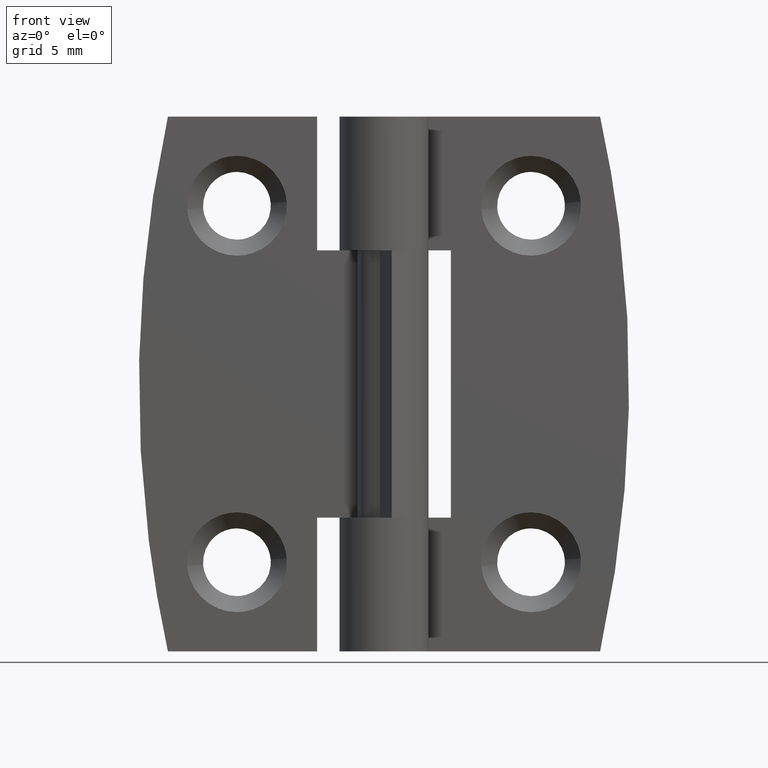
[diagram: clean part render]
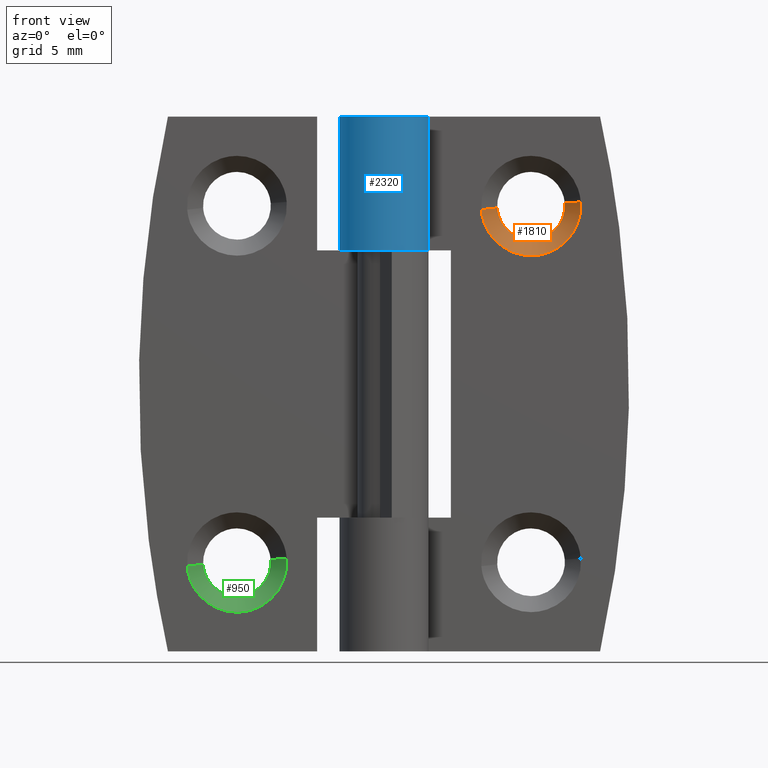
[diagram: same view with three faces highlighted in distinct colors, each labeled with its STEP entity id]
A machine part, front view with three faces highlighted in distinct colors.
Their STEP definitions:

[orange] entity #1810 — the highlighted face is a freeform B-spline surface patch.
#1501=CARTESIAN_POINT('',(10.137591467527031,2.400000000000000,24.783208736986101));
#1502=VERTEX_POINT('',#1501);
#1503=CARTESIAN_POINT('',(8.250000000000000,2.400000000000000,23.100000000000001));
#1504=VERTEX_POINT('',#1503);
#1505=CARTESIAN_POINT('',(10.137591467527027,2.400000000000000,24.783208736986090));
#1506=CARTESIAN_POINT('',(9.944273710852892,2.400000000000000,23.100000000000012));
#1507=CARTESIAN_POINT('',(8.250000000000000,2.400000000000000,23.100000000000001));
#1515=(BOUNDED_CURVE()B_SPLINE_CURVE(2,(#1505,#1506,#1507),.UNSPECIFIED.,.F.,.U.)B_SPLINE_CURVE_WITH_KNOTS((3,3),(0.269767755877904,0.500000000000000),.UNSPECIFIED.)CURVE()GEOMETRIC_REPRESENTATION_ITEM()RATIONAL_B_SPLINE_CURVE((0.957343736458110,0.730266147777739,1.0))REPRESENTATION_ITEM(''));
#1516=EDGE_CURVE('',#1502,#1504,#1515,.T.);
#1555=CARTESIAN_POINT('',(6.353543873147675,2.399999999999954,24.884007935942790));
#1556=VERTEX_POINT('',#1555);
#1562=CARTESIAN_POINT('',(8.250000000000000,2.400000000000000,23.100000000000001));
#1563=CARTESIAN_POINT('',(6.462658320803204,2.400000000000000,23.100000000000005));
#1564=CARTESIAN_POINT('',(6.353543873147670,2.400000000000000,24.884007935942790));
#1572=(BOUNDED_CURVE()B_SPLINE_CURVE(2,(#1562,#1563,#1564),.UNSPECIFIED.,.F.,.U.)B_SPLINE_CURVE_WITH_KNOTS((3,3),(0.500000000000000,0.739332976895730),.UNSPECIFIED.)CURVE()GEOMETRIC_REPRESENTATION_ITEM()RATIONAL_B_SPLINE_CURVE((1.0,0.719603976115215,0.976072073079005))REPRESENTATION_ITEM(''));
#1573=EDGE_CURVE('',#1504,#1556,#1572,.T.);
#1600=CARTESIAN_POINT('',(10.144142934095999,2.399999999992246,25.149072281942921));
#1601=VERTEX_POINT('',#1600);
#1602=CARTESIAN_POINT('',(10.144142934095996,2.399999999992245,25.149072281942921));
#1603=CARTESIAN_POINT('',(10.150000000000000,2.400000000000000,25.074651203374248));
#1604=CARTESIAN_POINT('',(10.150000000000000,2.400000000000000,25.0));
#1605=CARTESIAN_POINT('',(10.149999999999999,2.400000000000000,24.891249253444652));
#1606=CARTESIAN_POINT('',(10.137591467527027,2.400000000000000,24.783208736986104));
#1614=(BOUNDED_CURVE()B_SPLINE_CURVE(2,(#1602,#1603,#1604,#1605,#1606),.UNSPECIFIED.,.F.,.U.)B_SPLINE_CURVE_WITH_KNOTS((3,2,3),(0.236331300622015,0.250000000000000,0.269767755877904),.UNSPECIFIED.)CURVE()GEOMETRIC_REPRESENTATION_ITEM()RATIONAL_B_SPLINE_CURVE((0.969723356149377,0.983986122568754,1.0,0.976840633408809,0.957343736458110))REPRESENTATION_ITEM(''));
#1615=EDGE_CURVE('',#1601,#1502,#1614,.T.);
#1703=CARTESIAN_POINT('',(11.041368534455779,1.499999999992352,25.219685468097062));
#1704=VERTEX_POINT('',#1703);
#1705=CARTESIAN_POINT('',(10.144142934095999,2.399999999992246,25.149072281942921));
#1706=CARTESIAN_POINT('',(11.041368534455779,1.499999999992352,25.219685468097062));
#1707=QUASI_UNIFORM_CURVE('',1,(#1705,#1706),.UNSPECIFIED.,.F.,.U.);
#1708=EDGE_CURVE('',#1601,#1704,#1707,.T.);
#1725=CARTESIAN_POINT('',(5.458631465544222,1.499999999992353,24.780314531902938));
#1726=VERTEX_POINT('',#1725);
#1742=CARTESIAN_POINT('',(6.353543873147675,2.399999999999954,24.884007935942790));
#1743=CARTESIAN_POINT('',(5.458631465544222,1.499999999992353,24.780314531902938));
#1744=QUASI_UNIFORM_CURVE('',1,(#1742,#1743),.UNSPECIFIED.,.F.,.U.);
#1745=EDGE_CURVE('',#1556,#1726,#1744,.T.);
#1751=CARTESIAN_POINT('',(6.373681003226377,2.422500000000000,24.911226755304700));
#1752=CARTESIAN_POINT('',(6.375969338945305,2.422500000000001,24.882150693154973));
#1753=CARTESIAN_POINT('',(6.525594658145087,2.422500000000001,22.980980753687021));
#1754=CARTESIAN_POINT('',(8.397306952229030,2.422500000000000,23.128287705916058));
#1755=CARTESIAN_POINT('',(10.269019246312972,2.422500000000001,23.275594658145081));
#1756=CARTESIAN_POINT('',(10.120667328503878,2.422500000000000,25.160584498831589));
#1757=CARTESIAN_POINT('',(10.119628485875049,2.422500000000001,25.173784245962167));
#1758=CARTESIAN_POINT('',(5.428713290104263,1.476937500000000,24.866518019652389));
#1759=CARTESIAN_POINT('',(5.432154096898143,1.476937500000000,24.822798424071802));
#1760=CARTESIAN_POINT('',(5.657134990471213,1.476937499999999,21.964145128604830));
#1761=CARTESIAN_POINT('',(8.471494930933192,1.476937500000000,22.185640059538020));
#1762=CARTESIAN_POINT('',(11.285854871395170,1.476937499999999,22.407134990471210));
#1763=CARTESIAN_POINT('',(11.062788700439137,1.476937499999999,25.241459428352993));
#1764=CARTESIAN_POINT('',(11.061226667060266,1.476937500000001,25.261306944269808));
#1772=(BOUNDED_SURFACE()B_SPLINE_SURFACE(2,1,((#1751,#1758),(#1752,#1759),(#1753,#1760),(#1754,#1761),(#1755,#1762),(#1756,#1763),(#1757,#1764)),.UNSPECIFIED.,.F.,.F.,.U.)B_SPLINE_SURFACE_WITH_KNOTS((3,1,2,1,3),(2,2),(0.0,0.104789841354437,4.782192941062016,9.459596040769595,9.506658706696635),(0.0,1.0),.UNSPECIFIED.)GEOMETRIC_REPRESENTATION_ITEM()RATIONAL_B_SPLINE_SURFACE(((1.013123621496369,1.013123621496369),(1.006561810748184,1.006561810748184),(0.707106781186548,0.707106781186548),(1.0,1.0),(0.707106781186548,0.707106781186548),(1.002947006151806,1.002947006151806),(1.005894012303611,1.005894012303611)))REPRESENTATION_ITEM('')SURFACE());
#1773=ORIENTED_EDGE('',*,*,#1615,.T.);
#1774=ORIENTED_EDGE('',*,*,#1516,.T.);
#1775=ORIENTED_EDGE('',*,*,#1573,.T.);
#1776=ORIENTED_EDGE('',*,*,#1745,.T.);
#1777=CARTESIAN_POINT('',(8.250000000000000,1.500000000000000,22.199999999999999));
#1778=VERTEX_POINT('',#1777);
#1779=CARTESIAN_POINT('',(8.250000000000000,1.500000000000000,22.199999999999999));
#1780=CARTESIAN_POINT('',(5.661706623465825,1.500000000000000,22.200000000000010));
#1781=CARTESIAN_POINT('',(5.458631465544222,1.499999999992353,24.780314531902945));
#1789=(BOUNDED_CURVE()B_SPLINE_CURVE(2,(#1779,#1780,#1781),.UNSPECIFIED.,.F.,.U.)B_SPLINE_CURVE_WITH_KNOTS((3,3),(0.500000000000000,0.736331300625583),.UNSPECIFIED.)CURVE()GEOMETRIC_REPRESENTATION_ITEM()RATIONAL_B_SPLINE_CURVE((1.0,0.723120658613613,0.969723356156823))REPRESENTATION_ITEM(''));
#1790=EDGE_CURVE('',#1778,#1726,#1789,.T.);
#1791=ORIENTED_EDGE('',*,*,#1790,.F.);
#1792=CARTESIAN_POINT('',(11.041368534455779,1.499999999992352,25.219685468097062));
#1793=CARTESIAN_POINT('',(11.050000000000002,1.500000000000000,25.110012299680246));
#1794=CARTESIAN_POINT('',(11.050000000000001,1.500000000000000,25.0));
#1795=CARTESIAN_POINT('',(11.050000000000001,1.500000000000000,22.200000000000010));
#1796=CARTESIAN_POINT('',(8.250000000000000,1.500000000000000,22.199999999999999));
#1804=(BOUNDED_CURVE()B_SPLINE_CURVE(2,(#1792,#1793,#1794,#1795,#1796),.UNSPECIFIED.,.F.,.U.)B_SPLINE_CURVE_WITH_KNOTS((3,2,3),(0.236331300625583,0.250000000000000,0.500000000000000),.UNSPECIFIED.)CURVE()GEOMETRIC_REPRESENTATION_ITEM()RATIONAL_B_SPLINE_CURVE((0.969723356156822,0.983986122572934,1.0,0.707106781186547,1.0))REPRESENTATION_ITEM(''));
#1805=EDGE_CURVE('',#1704,#1778,#1804,.T.);
#1806=ORIENTED_EDGE('',*,*,#1805,.F.);
#1807=ORIENTED_EDGE('',*,*,#1708,.F.);
#1808=EDGE_LOOP('',(#1773,#1774,#1775,#1776,#1791,#1806,#1807));
#1809=FACE_OUTER_BOUND('',#1808,.T.);
#1810=ADVANCED_FACE('',(#1809),#1772,.F.);

[blue] entity #2320 — the highlighted face is a freeform B-spline surface patch.
#2146=CARTESIAN_POINT('',(2.036541185441630,1.450000000000000,22.500000000000000));
#2147=VERTEX_POINT('',#2146);
#2160=CARTESIAN_POINT('',(2.036541185441630,1.450000000000000,30.0));
#2161=VERTEX_POINT('',#2160);
#2167=CARTESIAN_POINT('',(2.036541185441630,1.450000000000000,30.0));
#2168=CARTESIAN_POINT('',(2.036541185441630,1.450000000000000,22.500000000000000));
#2169=QUASI_UNIFORM_CURVE('',1,(#2167,#2168),.UNSPECIFIED.,.F.,.U.);
#2170=EDGE_CURVE('',#2161,#2147,#2169,.T.);
#2248=CARTESIAN_POINT('',(0.021816338745933,2.499904807660427,30.187500000000000));
#2249=CARTESIAN_POINT('',(0.021816338745933,2.499904807660427,22.307812500000001));
#2250=CARTESIAN_POINT('',(-3.120994735379072,2.527331704395645,30.187500000000011));
#2251=CARTESIAN_POINT('',(-3.120994735379072,2.527331704395645,22.307812500000001));
#2252=CARTESIAN_POINT('',(-2.440740017799832,-0.541099034845259,30.187500000000000));
#2253=CARTESIAN_POINT('',(-2.440740017799832,-0.541099034845259,22.307812500000001));
#2254=CARTESIAN_POINT('',(-1.760485300220591,-3.609529774086163,30.187500000000011));
#2255=CARTESIAN_POINT('',(-1.760485300220591,-3.609529774086163,22.307812500000001));
#2256=CARTESIAN_POINT('',(1.076277742020738,-2.256463210874649,30.187500000000000));
#2257=CARTESIAN_POINT('',(1.076277742020738,-2.256463210874649,22.307812500000001));
#2258=CARTESIAN_POINT('',(3.913040784262066,-0.903396647663137,30.187500000000011));
#2259=CARTESIAN_POINT('',(3.913040784262066,-0.903396647663137,22.307812500000001));
#2260=CARTESIAN_POINT('',(1.956520392131033,1.556286591594048,30.187500000000000));
#2261=CARTESIAN_POINT('',(1.956520392131033,1.556286591594048,22.307812500000001));
#2269=(BOUNDED_SURFACE()B_SPLINE_SURFACE(1,2,((#2248,#2250,#2252,#2254,#2256,#2258,#2260),(#2249,#2251,#2253,#2255,#2257,#2259,#2261)),.UNSPECIFIED.,.F.,.F.,.U.)B_SPLINE_SURFACE_WITH_KNOTS((2,2),(3,2,2,3),(0.0,7.879687500000009),(0.0,4.823427408175702,9.646854816351404,14.470282224527111),.UNSPECIFIED.)GEOMETRIC_REPRESENTATION_ITEM()RATIONAL_B_SPLINE_SURFACE(((1.0,0.622514636637620,1.0,0.622514636637620,1.0,0.622514636637620,1.0),(1.0,0.622514636637620,1.0,0.622514636637620,1.0,0.622514636637620,1.0)))REPRESENTATION_ITEM('')SURFACE());
#2270=CARTESIAN_POINT('',(0.0,2.499999999999945,22.500000000000000));
#2271=VERTEX_POINT('',#2270);
#2272=CARTESIAN_POINT('',(2.036541185441630,1.450000000000000,22.500000000000000));
#2273=CARTESIAN_POINT('',(3.176813295694007,-0.151524906992693,22.499999999999996));
#2274=CARTESIAN_POINT('',(1.889288151888372,-1.637250829633083,22.500000000000000));
#2275=CARTESIAN_POINT('',(0.601763008082737,-3.122976752273474,22.499999999999996));
#2276=CARTESIAN_POINT('',(-1.145643923738960,-2.222048604328897,22.500000000000000));
#2277=CARTESIAN_POINT('',(-2.893050855560657,-1.321120456384320,22.499999999999996));
#2278=CARTESIAN_POINT('',(-2.429518626273757,0.589439771807839,22.500000000000000));
#2279=CARTESIAN_POINT('',(-1.965986396986857,2.500000000000000,22.499999999999996));
#2280=CARTESIAN_POINT('',(0.0,2.499999999999945,22.500000000000000));
#2288=(BOUNDED_CURVE()B_SPLINE_CURVE(2,(#2272,#2273,#2274,#2275,#2276,#2277,#2278,#2279,#2280),.UNSPECIFIED.,.F.,.U.)B_SPLINE_CURVE_WITH_KNOTS((3,2,2,2,3),(0.0,0.250000000000000,0.500000000000000,0.750000000000000,1.0),.UNSPECIFIED.)CURVE()GEOMETRIC_REPRESENTATION_ITEM()RATIONAL_B_SPLINE_CURVE((1.0,0.786058492964466,1.0,0.786058492964466,1.0,0.786058492964466,1.0,0.786058492964466,1.0))REPRESENTATION_ITEM(''));
#2289=EDGE_CURVE('',#2147,#2271,#2288,.T.);
#2290=ORIENTED_EDGE('',*,*,#2289,.F.);
#2291=ORIENTED_EDGE('',*,*,#2170,.F.);
#2292=CARTESIAN_POINT('',(0.0,2.500000000000000,30.0));
#2293=VERTEX_POINT('',#2292);
#2294=CARTESIAN_POINT('',(2.036541185441630,1.450000000000000,30.0));
#2295=CARTESIAN_POINT('',(3.176813295694007,-0.151524906992693,29.999999999999996));
#2296=CARTESIAN_POINT('',(1.889288151888372,-1.637250829633083,30.0));
#2297=CARTESIAN_POINT('',(0.601763008082737,-3.122976752273474,29.999999999999996));
#2298=CARTESIAN_POINT('',(-1.145643923738960,-2.222048604328897,30.0));
#2299=CARTESIAN_POINT('',(-2.893050855560657,-1.321120456384320,29.999999999999996));
#2300=CARTESIAN_POINT('',(-2.429518626273757,0.589439771807839,30.0));
#2301=CARTESIAN_POINT('',(-1.965986396986857,2.500000000000000,29.999999999999996));
#2302=CARTESIAN_POINT('',(0.0,2.500000000000000,30.0));
#2310=(BOUNDED_CURVE()B_SPLINE_CURVE(2,(#2294,#2295,#2296,#2297,#2298,#2299,#2300,#2301,#2302),.UNSPECIFIED.,.F.,.U.)B_SPLINE_CURVE_WITH_KNOTS((3,2,2,2,3),(0.0,0.250000000000000,0.500000000000000,0.750000000000000,1.0),.UNSPECIFIED.)CURVE()GEOMETRIC_REPRESENTATION_ITEM()RATIONAL_B_SPLINE_CURVE((1.0,0.786058492964466,1.0,0.786058492964466,1.0,0.786058492964466,1.0,0.786058492964466,1.0))REPRESENTATION_ITEM(''));
#2311=EDGE_CURVE('',#2161,#2293,#2310,.T.);
#2312=ORIENTED_EDGE('',*,*,#2311,.T.);
#2313=CARTESIAN_POINT('',(0.0,2.499999999999945,22.500000000000000));
#2314=CARTESIAN_POINT('',(0.0,2.500000000000000,30.0));
#2315=QUASI_UNIFORM_CURVE('',1,(#2313,#2314),.UNSPECIFIED.,.F.,.U.);
#2316=EDGE_CURVE('',#2271,#2293,#2315,.T.);
#2317=ORIENTED_EDGE('',*,*,#2316,.F.);
#2318=EDGE_LOOP('',(#2290,#2291,#2312,#2317));
#2319=FACE_OUTER_BOUND('',#2318,.T.);
#2320=ADVANCED_FACE('',(#2319),#2269,.T.);

[green] entity #950 — the highlighted face is a freeform B-spline surface patch.
#641=CARTESIAN_POINT('',(-6.362408532472973,2.400000000000000,4.783208736986094));
#642=VERTEX_POINT('',#641);
#643=CARTESIAN_POINT('',(-8.250000000000000,2.400000000000000,3.100000000000001));
#644=VERTEX_POINT('',#643);
#645=CARTESIAN_POINT('',(-6.362408532472973,2.400000000000000,4.783208736986094));
#646=CARTESIAN_POINT('',(-6.555726289147112,2.400000000000000,3.100000000000001));
#647=CARTESIAN_POINT('',(-8.250000000000000,2.400000000000000,3.100000000000001));
#655=(BOUNDED_CURVE()B_SPLINE_CURVE(2,(#645,#646,#647),.UNSPECIFIED.,.F.,.U.)B_SPLINE_CURVE_WITH_KNOTS((3,3),(0.269767755877904,0.500000000000000),.UNSPECIFIED.)CURVE()GEOMETRIC_REPRESENTATION_ITEM()RATIONAL_B_SPLINE_CURVE((0.957343736458110,0.730266147777739,1.0))REPRESENTATION_ITEM(''));
#656=EDGE_CURVE('',#642,#644,#655,.T.);
#695=CARTESIAN_POINT('',(-10.146456126852330,2.399999999999954,4.884007935942796));
#696=VERTEX_POINT('',#695);
#702=CARTESIAN_POINT('',(-8.250000000000000,2.400000000000000,3.100000000000001));
#703=CARTESIAN_POINT('',(-10.037341679196803,2.400000000000000,3.100000000000001));
#704=CARTESIAN_POINT('',(-10.146456126852325,2.399999999999954,4.884007935942796));
#712=(BOUNDED_CURVE()B_SPLINE_CURVE(2,(#702,#703,#704),.UNSPECIFIED.,.F.,.U.)B_SPLINE_CURVE_WITH_KNOTS((3,3),(0.500000000000000,0.739332976895731),.UNSPECIFIED.)CURVE()GEOMETRIC_REPRESENTATION_ITEM()RATIONAL_B_SPLINE_CURVE((1.0,0.719603976115215,0.976072073079007))REPRESENTATION_ITEM(''));
#713=EDGE_CURVE('',#644,#696,#712,.T.);
#740=CARTESIAN_POINT('',(-6.355857065904004,2.399999999992246,5.149072281942914));
#741=VERTEX_POINT('',#740);
#742=CARTESIAN_POINT('',(-6.355857065904004,2.399999999992246,5.149072281942915));
#743=CARTESIAN_POINT('',(-6.350000000000001,2.400000000000000,5.074651203374248));
#744=CARTESIAN_POINT('',(-6.350000000000001,2.400000000000000,5.0));
#745=CARTESIAN_POINT('',(-6.350000000000001,2.400000000000000,4.891249253444652));
#746=CARTESIAN_POINT('',(-6.362408532472973,2.400000000000000,4.783208736986095));
#754=(BOUNDED_CURVE()B_SPLINE_CURVE(2,(#742,#743,#744,#745,#746),.UNSPECIFIED.,.F.,.U.)B_SPLINE_CURVE_WITH_KNOTS((3,2,3),(0.236331300622015,0.250000000000000,0.269767755877904),.UNSPECIFIED.)CURVE()GEOMETRIC_REPRESENTATION_ITEM()RATIONAL_B_SPLINE_CURVE((0.969723356149378,0.983986122568755,1.0,0.976840633408809,0.957343736458110))REPRESENTATION_ITEM(''));
#755=EDGE_CURVE('',#741,#642,#754,.T.);
#843=CARTESIAN_POINT('',(-5.458631465544222,1.499999999992353,5.219685468097059));
#844=VERTEX_POINT('',#843);
#845=CARTESIAN_POINT('',(-6.355857065904004,2.399999999992246,5.149072281942914));
#846=CARTESIAN_POINT('',(-5.458631465544222,1.499999999992353,5.219685468097059));
#847=QUASI_UNIFORM_CURVE('',1,(#845,#846),.UNSPECIFIED.,.F.,.U.);
#848=EDGE_CURVE('',#741,#844,#847,.T.);
#865=CARTESIAN_POINT('',(-11.041368534455779,1.499999999992352,4.780314531902942));
#866=VERTEX_POINT('',#865);
#882=CARTESIAN_POINT('',(-10.146456126852330,2.399999999999954,4.884007935942796));
#883=CARTESIAN_POINT('',(-11.041368534455779,1.499999999992352,4.780314531902942));
#884=QUASI_UNIFORM_CURVE('',1,(#882,#883),.UNSPECIFIED.,.F.,.U.);
#885=EDGE_CURVE('',#696,#866,#884,.T.);
#891=CARTESIAN_POINT('',(-10.126318997063001,2.422499999999999,4.911226758981695));
#892=CARTESIAN_POINT('',(-10.124030661201289,2.422500000000001,4.882150695017513));
#893=CARTESIAN_POINT('',(-9.974405341854913,2.422500000000001,2.980980753687028));
#894=CARTESIAN_POINT('',(-8.102693047770970,2.422500000000000,3.128287705916057));
#895=CARTESIAN_POINT('',(-6.230980753687027,2.422500000000001,3.275594658145087));
#896=CARTESIAN_POINT('',(-6.379332671496854,2.422499999999999,5.160584498840916));
#897=CARTESIAN_POINT('',(-6.380371514126415,2.422500000000001,5.173784245980707));
#898=CARTESIAN_POINT('',(-11.071286710330863,1.476937499999999,4.866518025181231));
#899=CARTESIAN_POINT('',(-11.067845903322272,1.476937500000001,4.822798426872370));
#900=CARTESIAN_POINT('',(-10.842865009528786,1.476937499999999,1.964145128604832));
#901=CARTESIAN_POINT('',(-8.028505069066808,1.476937500000000,2.185640059538022));
#902=CARTESIAN_POINT('',(-5.214145128604830,1.476937499999999,2.407134990471213));
#903=CARTESIAN_POINT('',(-5.437211299561959,1.476937500000000,5.241459428367024));
#904=CARTESIAN_POINT('',(-5.438773332941934,1.476937500000000,5.261306944297689));
#912=(BOUNDED_SURFACE()B_SPLINE_SURFACE(2,1,((#891,#898),(#892,#899),(#893,#900),(#894,#901),(#895,#902),(#896,#903),(#897,#904)),.UNSPECIFIED.,.F.,.F.,.U.)B_SPLINE_SURFACE_WITH_KNOTS((3,1,2,1,3),(2,2),(0.0,0.104789848023554,4.782192947731136,9.459596047438717,9.506658713398911),(0.0,1.0),.UNSPECIFIED.)GEOMETRIC_REPRESENTATION_ITEM()RATIONAL_B_SPLINE_SURFACE(((1.013123622331593,1.013123622331593),(1.006561811165796,1.006561811165796),(0.707106781186548,0.707106781186548),(1.0,1.0),(0.707106781186548,0.707106781186548),(1.002947006153882,1.002947006153882),(1.005894012307763,1.005894012307763)))REPRESENTATION_ITEM('')SURFACE());
#913=ORIENTED_EDGE('',*,*,#755,.T.);
#914=ORIENTED_EDGE('',*,*,#656,.T.);
#915=ORIENTED_EDGE('',*,*,#713,.T.);
#916=ORIENTED_EDGE('',*,*,#885,.T.);
#917=CARTESIAN_POINT('',(-8.250000000000000,1.500000000000000,2.200000000000000));
#918=VERTEX_POINT('',#917);
#919=CARTESIAN_POINT('',(-8.250000000000000,1.500000000000000,2.200000000000000));
#920=CARTESIAN_POINT('',(-10.838293376534178,1.500000000000000,2.200000000000000));
#921=CARTESIAN_POINT('',(-11.041368534455778,1.499999999992352,4.780314531902942));
#929=(BOUNDED_CURVE()B_SPLINE_CURVE(2,(#919,#920,#921),.UNSPECIFIED.,.F.,.U.)B_SPLINE_CURVE_WITH_KNOTS((3,3),(0.500000000000000,0.736331300625583),.UNSPECIFIED.)CURVE()GEOMETRIC_REPRESENTATION_ITEM()RATIONAL_B_SPLINE_CURVE((1.0,0.723120658613613,0.969723356156823))REPRESENTATION_ITEM(''));
#930=EDGE_CURVE('',#918,#866,#929,.T.);
#931=ORIENTED_EDGE('',*,*,#930,.F.);
#932=CARTESIAN_POINT('',(-5.458631465544222,1.499999999992353,5.219685468097059));
#933=CARTESIAN_POINT('',(-5.449999999999999,1.500000000000000,5.110012299680238));
#934=CARTESIAN_POINT('',(-5.450000000000000,1.500000000000000,5.0));
#935=CARTESIAN_POINT('',(-5.450000000000000,1.500000000000000,2.200000000000001));
#936=CARTESIAN_POINT('',(-8.250000000000000,1.500000000000000,2.200000000000000));
#944=(BOUNDED_CURVE()B_SPLINE_CURVE(2,(#932,#933,#934,#935,#936),.UNSPECIFIED.,.F.,.U.)B_SPLINE_CURVE_WITH_KNOTS((3,2,3),(0.236331300625583,0.250000000000000,0.500000000000000),.UNSPECIFIED.)CURVE()GEOMETRIC_REPRESENTATION_ITEM()RATIONAL_B_SPLINE_CURVE((0.969723356156822,0.983986122572934,1.0,0.707106781186547,1.0))REPRESENTATION_ITEM(''));
#945=EDGE_CURVE('',#844,#918,#944,.T.);
#946=ORIENTED_EDGE('',*,*,#945,.F.);
#947=ORIENTED_EDGE('',*,*,#848,.F.);
#948=EDGE_LOOP('',(#913,#914,#915,#916,#931,#946,#947));
#949=FACE_OUTER_BOUND('',#948,.T.);
#950=ADVANCED_FACE('',(#949),#912,.F.);